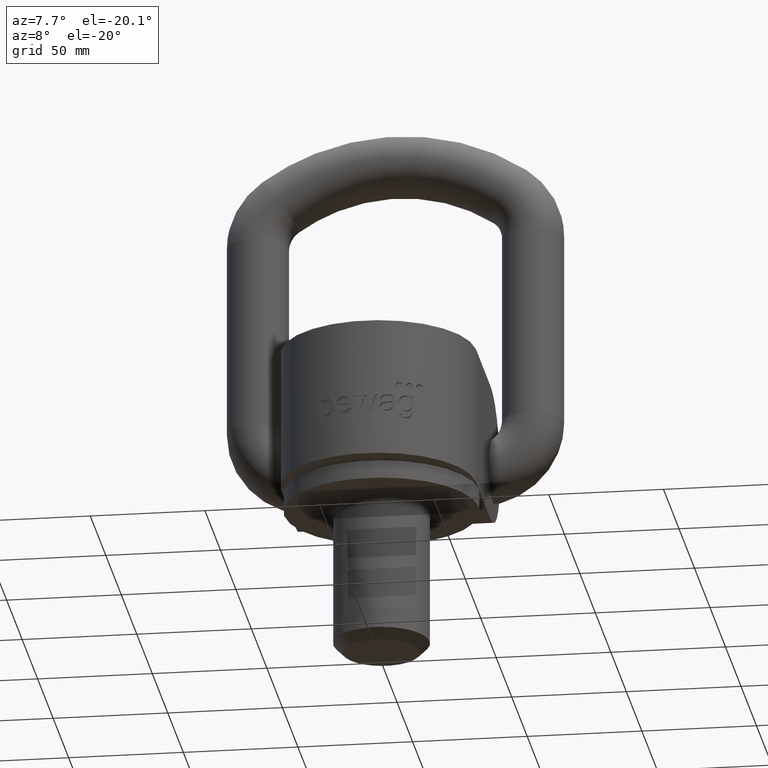
[diagram: clean part render]
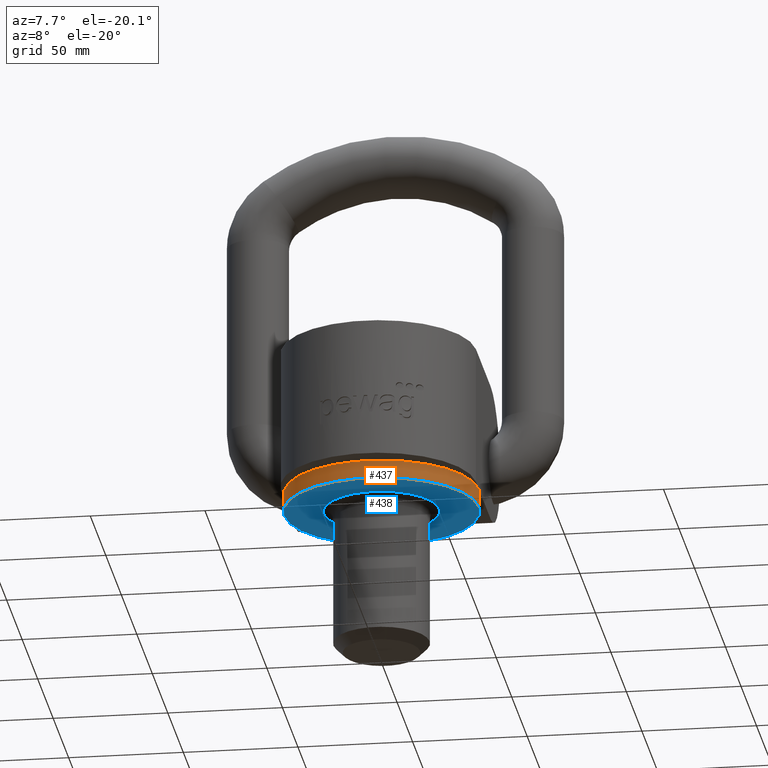
[diagram: same view with the hole feature highlighted: cylindrical wall and planar end face, labeled with their STEP entity ids]
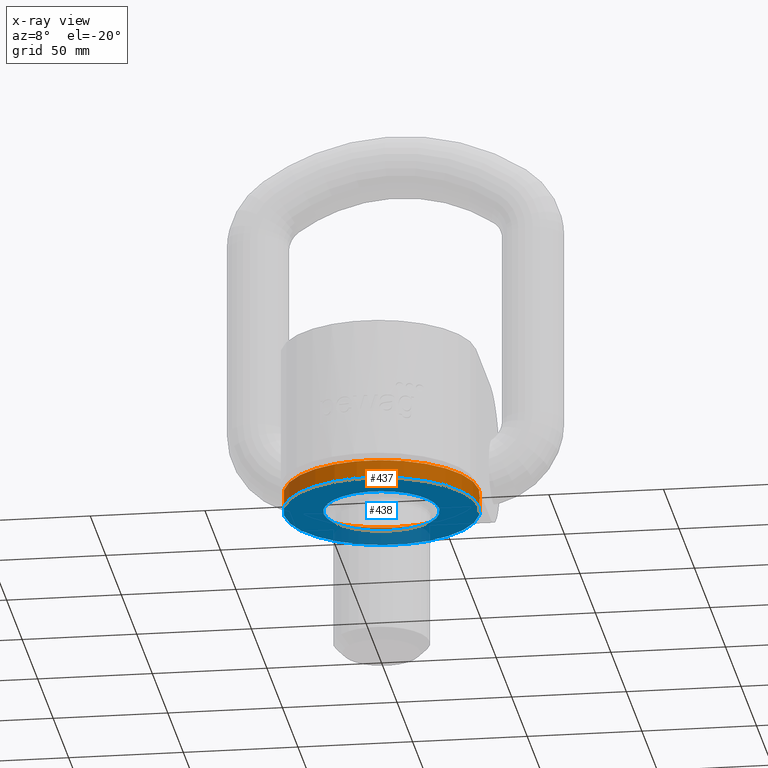
[diagram: x-ray of the same camera — body ghosted, the hole faces saturated]
A machine part, auxiliary view. The highlighted faces form one hole feature of diameter 85 mm: the cylindrical wall (entity #437, orange) and its adjacent planar end face (entity #438, blue) — they share a circular edge in the B-rep.
The next image is the same camera in x-ray (body ghosted, the hole faces saturated) — the bore reads through the body.
Wall:
#437=ADVANCED_FACE('',(#593,#594),#548,.T.);
#548=CYLINDRICAL_SURFACE('',#2525,42.5);
#593=FACE_BOUND('',#669,.T.);
#594=FACE_BOUND('',#670,.T.);
#669=EDGE_LOOP('',(#1320));
#670=EDGE_LOOP('',(#1321,#1322,#1323,#1324));
#1119=CIRCLE('',#2493,42.5);
#1120=CIRCLE('',#2495,42.5);
#1121=CIRCLE('',#2497,42.5);
#1126=CIRCLE('',#2523,42.5);
#1127=CIRCLE('',#2524,42.5);
#1320=ORIENTED_EDGE('',*,*,#2102,.F.);
#1321=ORIENTED_EDGE('',*,*,#2052,.T.);
#1322=ORIENTED_EDGE('',*,*,#2049,.T.);
#1323=ORIENTED_EDGE('',*,*,#2103,.T.);
#1324=ORIENTED_EDGE('',*,*,#2055,.T.);
#1836=VERTEX_POINT('',#3761);
#1837=VERTEX_POINT('',#3762);
#1839=VERTEX_POINT('',#3768);
#1840=VERTEX_POINT('',#3773);
#1870=VERTEX_POINT('',#3871);
#2049=EDGE_CURVE('',#1836,#1837,#1119,.T.);
#2052=EDGE_CURVE('',#1839,#1836,#1120,.T.);
#2055=EDGE_CURVE('',#1840,#1839,#1121,.T.);
#2102=EDGE_CURVE('',#1870,#1870,#1126,.T.);
#2103=EDGE_CURVE('',#1837,#1840,#1127,.T.);
#2493=AXIS2_PLACEMENT_3D('',#3760,#2671,#2672);
#2495=AXIS2_PLACEMENT_3D('',#3767,#2677,#2678);
#2497=AXIS2_PLACEMENT_3D('',#3772,#2683,#2684);
#2523=AXIS2_PLACEMENT_3D('',#3870,#2777,#2778);
#2524=AXIS2_PLACEMENT_3D('',#3872,#2779,#2780);
#2525=AXIS2_PLACEMENT_3D('',#3873,#2781,#2782);
#2671=DIRECTION('',(0.,0.,-1.));
#2672=DIRECTION('',(1.,1.22464679914735E-16,0.));
#2677=DIRECTION('',(0.,0.,-1.));
#2678=DIRECTION('',(1.,1.22464679914735E-16,0.));
#2683=DIRECTION('',(0.,0.,-1.));
#2684=DIRECTION('',(1.,1.22464679914735E-16,0.));
#2777=DIRECTION('',(0.,0.,-1.));
#2778=DIRECTION('',(1.,1.22464679914735E-16,0.));
#2779=DIRECTION('',(0.,0.,-1.));
#2780=DIRECTION('',(1.,1.22464679914735E-16,0.));
#2781=DIRECTION('',(0.,0.,1.));
#2782=DIRECTION('',(1.,0.,0.));
#3760=CARTESIAN_POINT('',(0.,0.,6.69539461904587E-14));
#3761=CARTESIAN_POINT('',(-42.5,0.,2.92570631503094E-15));
#3762=CARTESIAN_POINT('',(-20.,37.5,7.94860999328799E-15));
#3767=CARTESIAN_POINT('',(0.,0.,6.69539461904587E-14));
#3768=CARTESIAN_POINT('',(42.5,0.,6.69539461904587E-14));
#3772=CARTESIAN_POINT('',(0.,0.,6.69539461904587E-14));
#3773=CARTESIAN_POINT('',(20.,37.5,7.94860999328799E-15));
#3870=CARTESIAN_POINT('',(0.,0.,-7.99999999999993));
#3871=CARTESIAN_POINT('',(42.5,5.20474889637625E-15,-7.99999999999993));
#3872=CARTESIAN_POINT('',(0.,0.,6.69539461904587E-14));
#3873=CARTESIAN_POINT('',(0.,0.,-7.99999999999993));
End face:
#265=PLANE('',#2527);
#438=ADVANCED_FACE('',(#595,#596),#265,.T.);
#595=FACE_BOUND('',#671,.T.);
#596=FACE_BOUND('',#672,.T.);
#671=EDGE_LOOP('',(#1325));
#672=EDGE_LOOP('',(#1326));
#1126=CIRCLE('',#2523,42.5);
#1128=CIRCLE('',#2526,25.2);
#1325=ORIENTED_EDGE('',*,*,#2104,.T.);
#1326=ORIENTED_EDGE('',*,*,#2102,.T.);
#1870=VERTEX_POINT('',#3871);
#1871=VERTEX_POINT('',#3875);
#2102=EDGE_CURVE('',#1870,#1870,#1126,.T.);
#2104=EDGE_CURVE('',#1871,#1871,#1128,.T.);
#2523=AXIS2_PLACEMENT_3D('',#3870,#2777,#2778);
#2526=AXIS2_PLACEMENT_3D('',#3874,#2783,#2784);
#2527=AXIS2_PLACEMENT_3D('',#3876,#2785,#2786);
#2777=DIRECTION('',(0.,0.,-1.));
#2778=DIRECTION('',(1.,1.22464679914735E-16,0.));
#2783=DIRECTION('',(0.,0.,1.));
#2784=DIRECTION('',(-1.,0.,0.));
#2785=DIRECTION('',(0.,0.,-1.));
#2786=DIRECTION('',(-1.,0.,0.));
#3870=CARTESIAN_POINT('',(0.,0.,-7.99999999999993));
#3871=CARTESIAN_POINT('',(42.5,5.20474889637625E-15,-7.99999999999993));
#3874=CARTESIAN_POINT('',(0.,0.,-7.99999999999993));
#3875=CARTESIAN_POINT('',(-25.2,0.,-7.99999999999993));
#3876=CARTESIAN_POINT('',(0.,0.,-7.99999999999993));